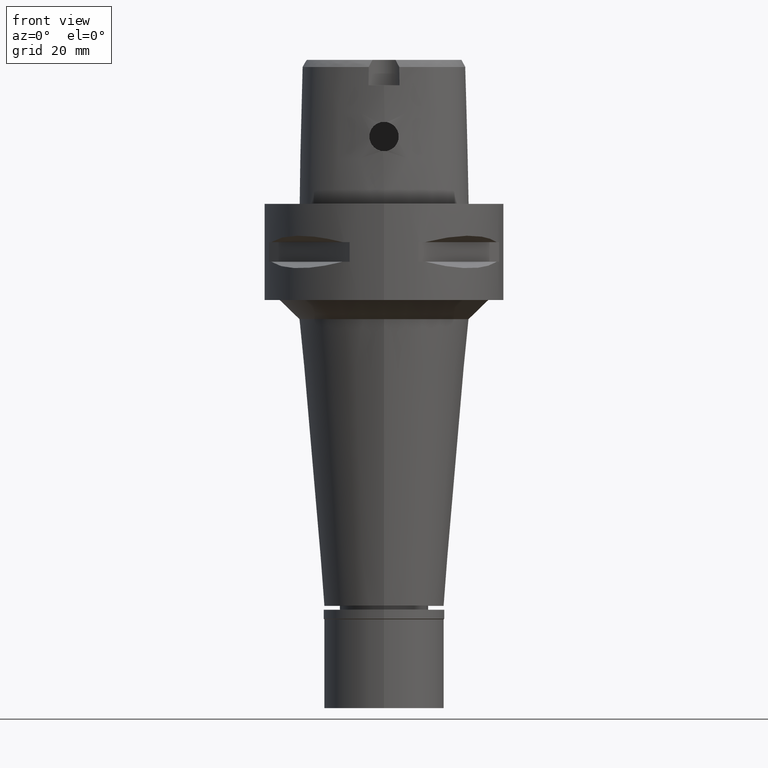
[diagram: clean part render]
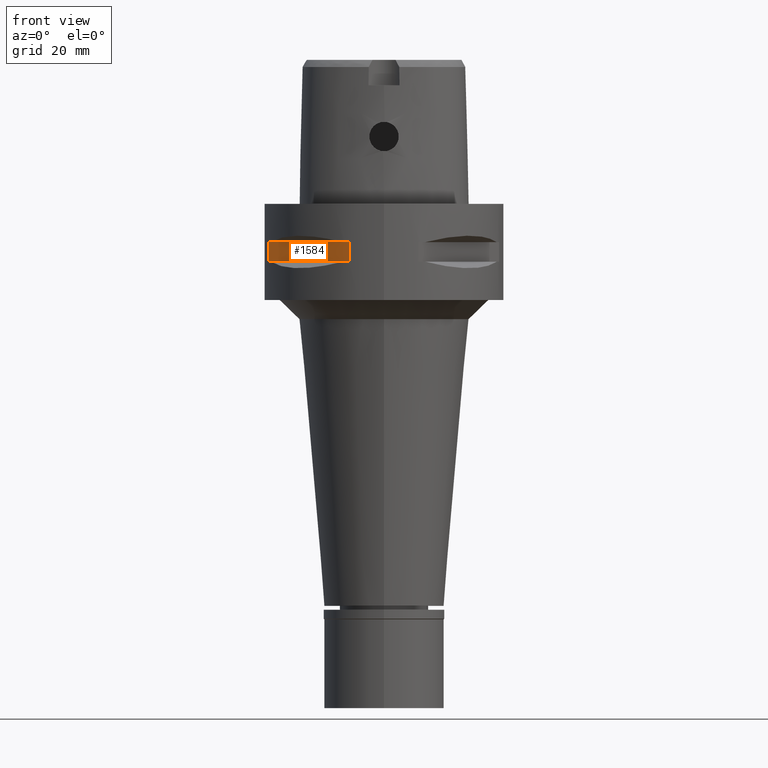
[diagram: same view with one face highlighted and labeled with its STEP entity id]
A machine part, front view. The second image highlights one B-rep face of the part: STEP entity #1584.
In plain terms, the highlighted planar face has unit normal (0.7071, 0.7071, 0).
Its self-contained STEP definition (entity closure, byte-faithful):
#22 = AXIS2_PLACEMENT_3D ( 'NONE', #2314, #4573, #794 ) ;
#140 = VERTEX_POINT ( 'NONE', #2431 ) ;
#187 = LINE ( 'NONE', #2126, #1703 ) ;
#265 = DIRECTION ( 'NONE',  ( 0.0000000000000000000, 0.0000000000000000000, -1.000000000000000000 ) ) ;
#482 = VERTEX_POINT ( 'NONE', #979 ) ;
#730 = EDGE_CURVE ( 'NONE', #140, #4701, #187, .T. ) ;
#794 = DIRECTION ( 'NONE',  ( 0.0000000000000000000, 0.0000000000000000000, -1.000000000000000000 ) ) ;
#824 = PLANE ( 'NONE',  #22 ) ;
#979 = CARTESIAN_POINT ( 'NONE',  ( -23.95277699797999915, -7.159921374235000080, -7.950000000000000178 ) ) ;
#1079 = ORIENTED_EDGE ( 'NONE', *, *, #3383, .T. ) ;
#1245 = LINE ( 'NONE', #3790, #4905 ) ;
#1341 = CARTESIAN_POINT ( 'NONE',  ( -23.95277699797999915, -7.159921374230999724, -12.05000000000000071 ) ) ;
#1584 = ADVANCED_FACE ( 'NONE', ( #4258 ), #824, .F. ) ;
#1603 = VECTOR ( 'NONE', #265, 1000.000000000000000 ) ;
#1703 = VECTOR ( 'NONE', #3993, 1000.000000000000000 ) ;
#1849 = CARTESIAN_POINT ( 'NONE',  ( -23.95277699797999915, -7.159921374230999724, -7.950000000000000178 ) ) ;
#2126 = CARTESIAN_POINT ( 'NONE',  ( -7.159921374230999724, -23.95277699797999915, -12.05000000000000071 ) ) ;
#2225 = VERTEX_POINT ( 'NONE', #3629 ) ;
#2233 = CARTESIAN_POINT ( 'NONE',  ( -7.159921374230999724, -23.95277699797999915, -7.950000000000000178 ) ) ;
#2314 = CARTESIAN_POINT ( 'NONE',  ( -4.949747468305999654, -26.16295090389999700, -7.950000000000000178 ) ) ;
#2429 = ORIENTED_EDGE ( 'NONE', *, *, #730, .T. ) ;
#2431 = CARTESIAN_POINT ( 'NONE',  ( -7.159921374235000080, -23.95277699797999915, -12.05000000000000071 ) ) ;
#2875 = DIRECTION ( 'NONE',  ( 0.7071067811865474617, -0.7071067811865474617, 0.0000000000000000000 ) ) ;
#2943 = EDGE_CURVE ( 'NONE', #482, #4701, #1245, .T. ) ;
#2976 = ORIENTED_EDGE ( 'NONE', *, *, #3258, .T. ) ;
#3006 = VECTOR ( 'NONE', #2875, 1000.000000000000114 ) ;
#3065 = ORIENTED_EDGE ( 'NONE', *, *, #2943, .F. ) ;
#3258 = EDGE_CURVE ( 'NONE', #2225, #140, #3263, .T. ) ;
#3263 = LINE ( 'NONE', #1341, #3006 ) ;
#3383 = EDGE_CURVE ( 'NONE', #482, #2225, #4537, .T. ) ;
#3398 = DIRECTION ( 'NONE',  ( 0.7071067811865474617, -0.7071067811865474617, 0.0000000000000000000 ) ) ;
#3629 = CARTESIAN_POINT ( 'NONE',  ( -23.95277699797999915, -7.159921374230999724, -12.05000000000000071 ) ) ;
#3790 = CARTESIAN_POINT ( 'NONE',  ( -23.95277699797999915, -7.159921374230999724, -7.950000000000000178 ) ) ;
#3977 = EDGE_LOOP ( 'NONE', ( #3065, #1079, #2976, #2429 ) ) ;
#3993 = DIRECTION ( 'NONE',  ( 0.0000000000000000000, 0.0000000000000000000, 1.000000000000000000 ) ) ;
#4258 = FACE_OUTER_BOUND ( 'NONE', #3977, .T. ) ;
#4537 = LINE ( 'NONE', #1849, #1603 ) ;
#4573 = DIRECTION ( 'NONE',  ( 0.7071067811865475727, 0.7071067811865475727, 0.0000000000000000000 ) ) ;
#4701 = VERTEX_POINT ( 'NONE', #2233 ) ;
#4905 = VECTOR ( 'NONE', #3398, 1000.000000000000114 ) ;